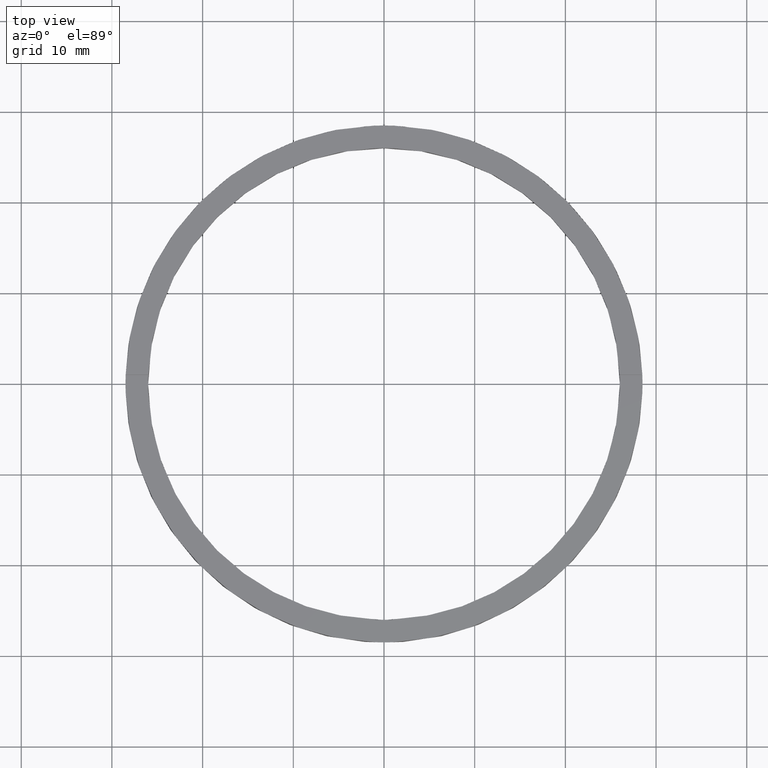
[diagram: clean part render]
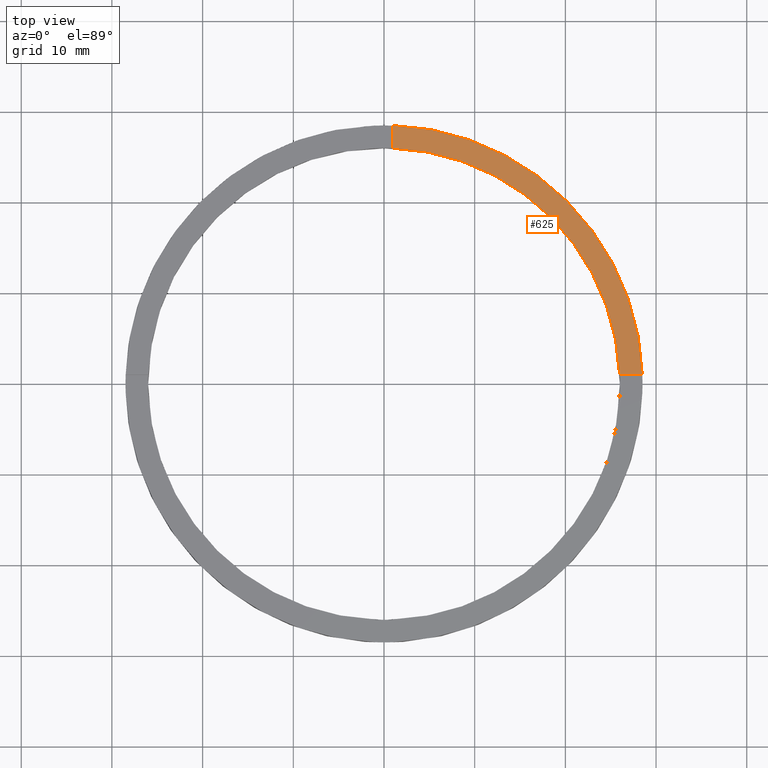
[diagram: same view with one face highlighted and labeled with its STEP entity id]
A machine part, top view. The second image highlights one B-rep face of the part: STEP entity #625.
In plain terms, the highlighted planar face has unit normal (0, 0, 1).
Its self-contained STEP definition (entity closure, byte-faithful):
#77 = CARTESIAN_POINT ( 'NONE',  ( 0.9999999999999735767, 28.48245073725223264, 2.500000000000000000 ) ) ;
#89 = ORIENTED_EDGE ( 'NONE', *, *, #579, .F. ) ;
#102 = CARTESIAN_POINT ( 'NONE',  ( 25.98076211353317078, 0.9999999999998430145, 2.500000000000000000 ) ) ;
#132 = LINE ( 'NONE', #252, #140 ) ;
#140 = VECTOR ( 'NONE', #190, 1000.000000000000000 ) ;
#153 = VECTOR ( 'NONE', #264, 1000.000000000000000 ) ;
#160 = EDGE_CURVE ( 'NONE', #482, #368, #132, .T. ) ;
#182 = AXIS2_PLACEMENT_3D ( 'NONE', #433, #781, #659 ) ;
#190 = DIRECTION ( 'NONE',  ( -1.000000000000000000, -4.336808689942018352E-17, -0.000000000000000000 ) ) ;
#239 = CARTESIAN_POINT ( 'NONE',  ( 0.000000000000000000, 0.000000000000000000, 2.500000000000000000 ) ) ;
#252 = CARTESIAN_POINT ( 'NONE',  ( 18.50000000000000000, 0.9999999999998427924, 2.500000000000000000 ) ) ;
#264 = DIRECTION ( 'NONE',  ( 0.000000000000000000, 1.000000000000000000, 0.000000000000000000 ) ) ;
#275 = EDGE_CURVE ( 'NONE', #586, #288, #397, .T. ) ;
#288 = VERTEX_POINT ( 'NONE', #77 ) ;
#348 = ORIENTED_EDGE ( 'NONE', *, *, #160, .F. ) ;
#368 = VERTEX_POINT ( 'NONE', #102 ) ;
#378 = ORIENTED_EDGE ( 'NONE', *, *, #275, .F. ) ;
#385 = EDGE_CURVE ( 'NONE', #482, #288, #660, .T. ) ;
#396 = DIRECTION ( 'NONE',  ( 1.000000000000000000, 0.000000000000000000, 0.000000000000000000 ) ) ;
#397 = LINE ( 'NONE', #686, #153 ) ;
#433 = CARTESIAN_POINT ( 'NONE',  ( 0.000000000000000000, 0.000000000000000000, 2.500000000000000000 ) ) ;
#475 = PLANE ( 'NONE',  #500 ) ;
#482 = VERTEX_POINT ( 'NONE', #681 ) ;
#487 = DIRECTION ( 'NONE',  ( 0.000000000000000000, 0.000000000000000000, 1.000000000000000000 ) ) ;
#500 = AXIS2_PLACEMENT_3D ( 'NONE', #239, #652, #779 ) ;
#524 = CARTESIAN_POINT ( 'NONE',  ( 0.9999999999999735767, 25.98076211353316367, 2.500000000000000000 ) ) ;
#579 = EDGE_CURVE ( 'NONE', #368, #586, #709, .T. ) ;
#586 = VERTEX_POINT ( 'NONE', #524 ) ;
#606 = EDGE_LOOP ( 'NONE', ( #378, #89, #348, #615 ) ) ;
#615 = ORIENTED_EDGE ( 'NONE', *, *, #385, .T. ) ;
#625 = ADVANCED_FACE ( 'NONE', ( #715 ), #475, .T. ) ;
#652 = DIRECTION ( 'NONE',  ( 0.000000000000000000, 0.000000000000000000, 1.000000000000000000 ) ) ;
#659 = DIRECTION ( 'NONE',  ( 1.000000000000000000, 0.000000000000000000, 0.000000000000000000 ) ) ;
#660 = CIRCLE ( 'NONE', #182, 28.50000000000000000 ) ;
#669 = AXIS2_PLACEMENT_3D ( 'NONE', #716, #487, #396 ) ;
#681 = CARTESIAN_POINT ( 'NONE',  ( 28.48245073725223264, 0.9999999999998432365, 2.500000000000000000 ) ) ;
#686 = CARTESIAN_POINT ( 'NONE',  ( 0.9999999999999735767, 18.50000000000000355, 2.500000000000000000 ) ) ;
#709 = CIRCLE ( 'NONE', #669, 26.00000000000000355 ) ;
#715 = FACE_OUTER_BOUND ( 'NONE', #606, .T. ) ;
#716 = CARTESIAN_POINT ( 'NONE',  ( 0.000000000000000000, 0.000000000000000000, 2.500000000000000000 ) ) ;
#779 = DIRECTION ( 'NONE',  ( 1.000000000000000000, 0.000000000000000000, -0.000000000000000000 ) ) ;
#781 = DIRECTION ( 'NONE',  ( 0.000000000000000000, 0.000000000000000000, 1.000000000000000000 ) ) ;